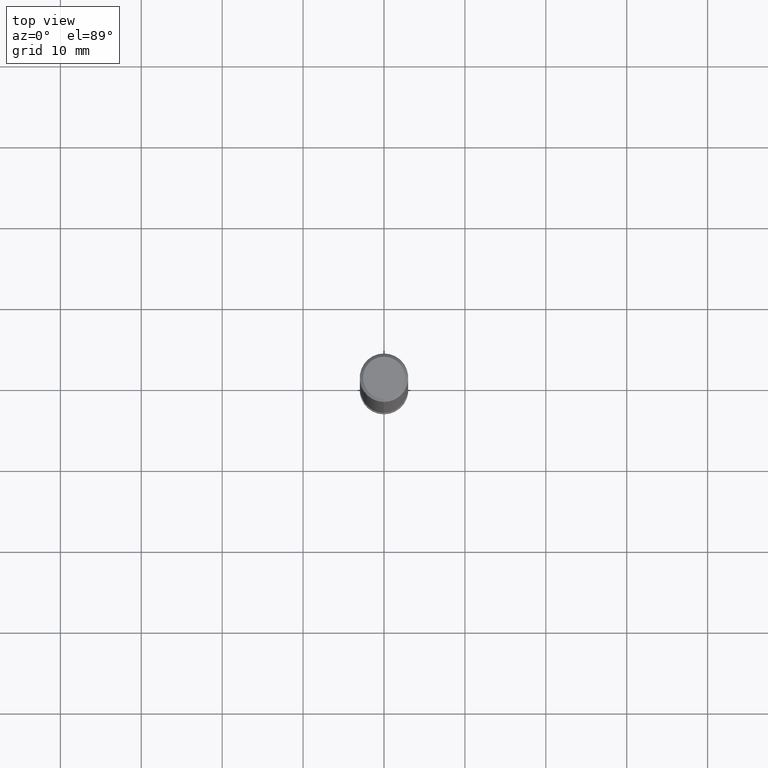
[diagram: clean part render]
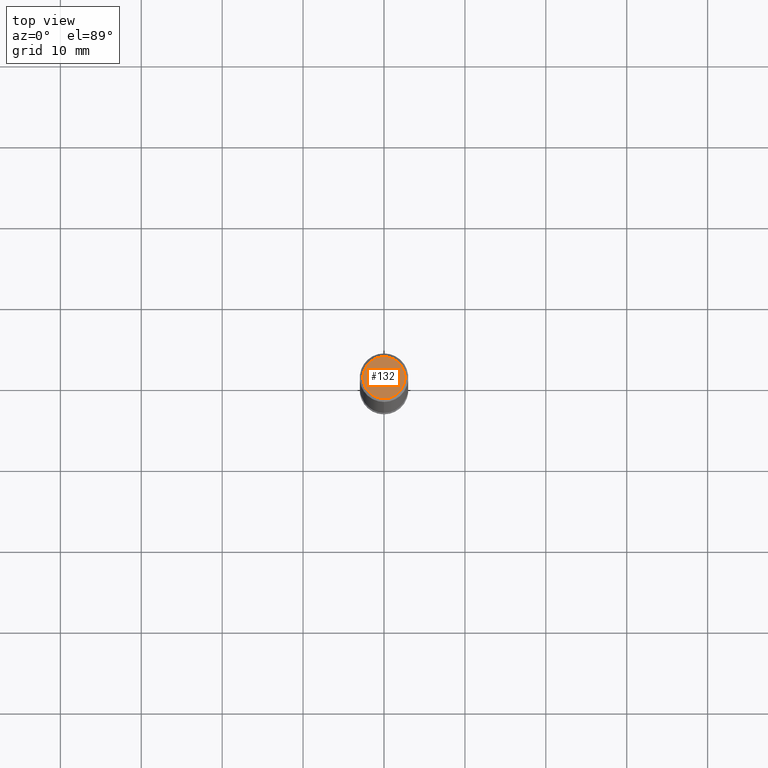
[diagram: same view with one face highlighted and labeled with its STEP entity id]
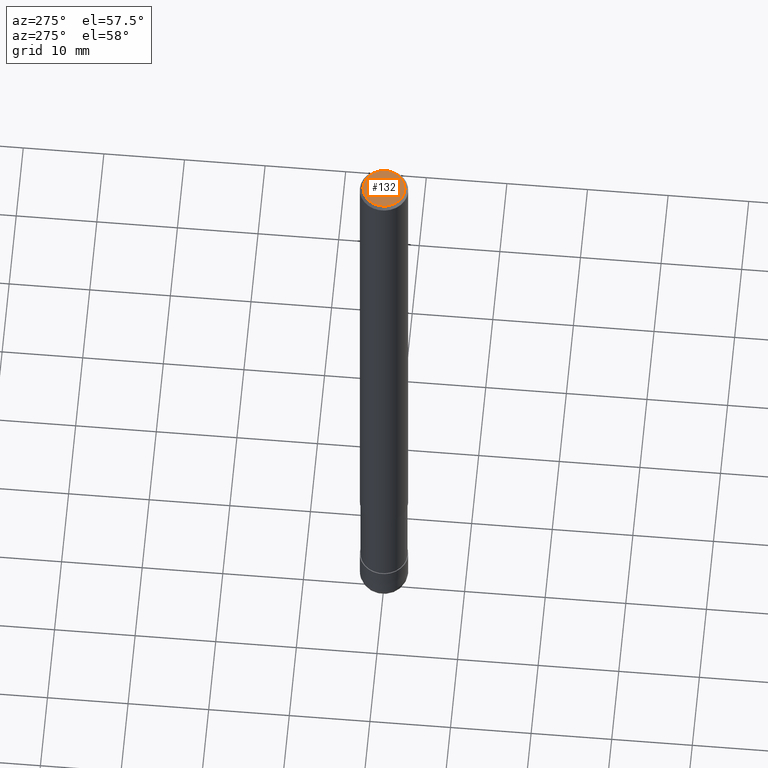
[diagram: same view with one face highlighted and labeled with its STEP entity id]
A machine part, top view. The second image highlights one B-rep face of the part: STEP entity #132.
A second angle (auxiliary view) of the same face is appended — the face is thin or edge-on in the first view.
In plain terms, the highlighted planar face has unit normal (-0, 0, 1).
Its self-contained STEP definition (entity closure, byte-faithful):
#94=EDGE_CURVE('',#148,#144,#232,.T.);
#132=ADVANCED_FACE('',(#271),#272,.T.);
#134=EDGE_CURVE('',#144,#148,#274,.T.);
#144=VERTEX_POINT('',#285);
#148=VERTEX_POINT('',#289);
#232=CIRCLE('',#378,2.6);
#271=FACE_OUTER_BOUND('',#429,.T.);
#272=PLANE('',#430);
#274=CIRCLE('',#433,2.6);
#285=CARTESIAN_POINT('',(0.0,2.6,0.0));
#289=CARTESIAN_POINT('',(3.18397651993818E-016,-2.6,0.0));
#378=AXIS2_PLACEMENT_3D('',#546,#547,#548);
#429=EDGE_LOOP('',(#578,#579));
#430=AXIS2_PLACEMENT_3D('',#580,#581,#582);
#433=AXIS2_PLACEMENT_3D('',#583,#584,#585);
#546=CARTESIAN_POINT('',(0.0,0.0,0.0));
#547=DIRECTION('',(0.0,0.0,-1.0));
#548=DIRECTION('',(0.0,1.0,0.0));
#578=ORIENTED_EDGE('',*,*,#134,.F.);
#579=ORIENTED_EDGE('',*,*,#94,.F.);
#580=CARTESIAN_POINT('',(0.0,1.3,0.0));
#581=DIRECTION('',(-0.0,0.0,1.0));
#582=DIRECTION('',(0.0,-1.0,0.0));
#583=CARTESIAN_POINT('',(0.0,0.0,0.0));
#584=DIRECTION('',(0.0,0.0,-1.0));
#585=DIRECTION('',(0.0,1.0,0.0));